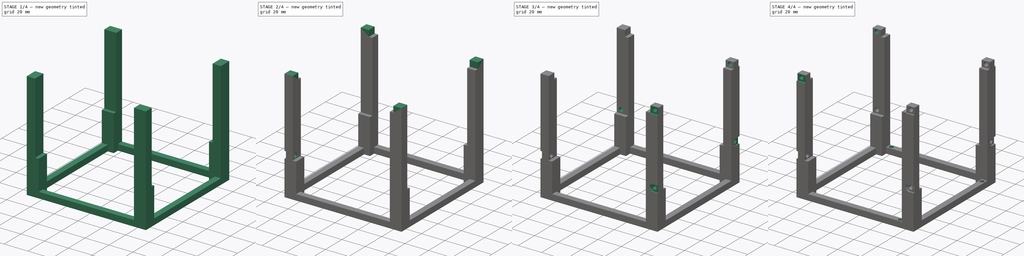
[diagram: build sequence overview — one tinted view per stage of 4, left to right]
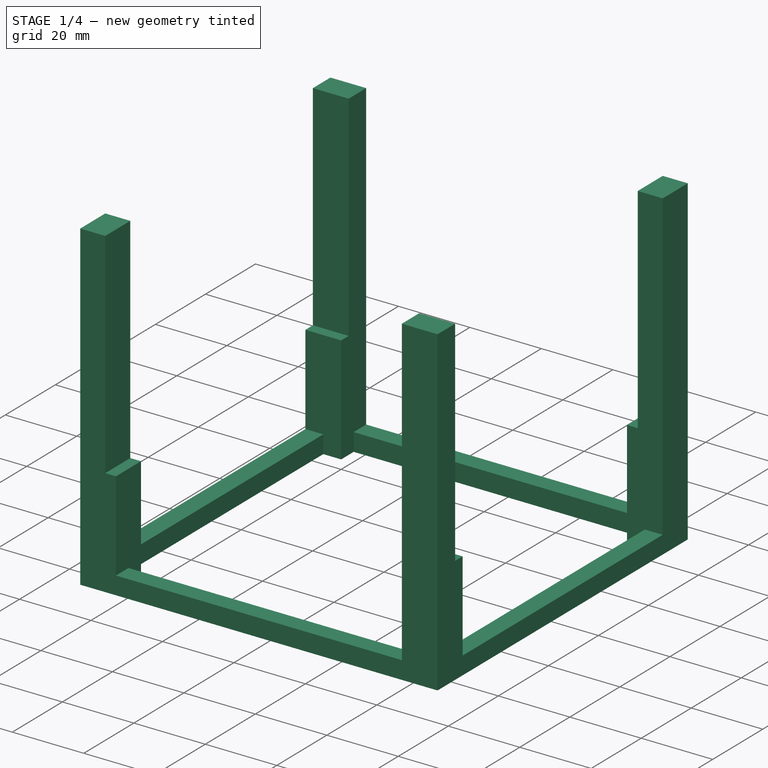
[diagram: stage 1 of 4 — iso view after this stage's code; geometry added in this stage tinted green]
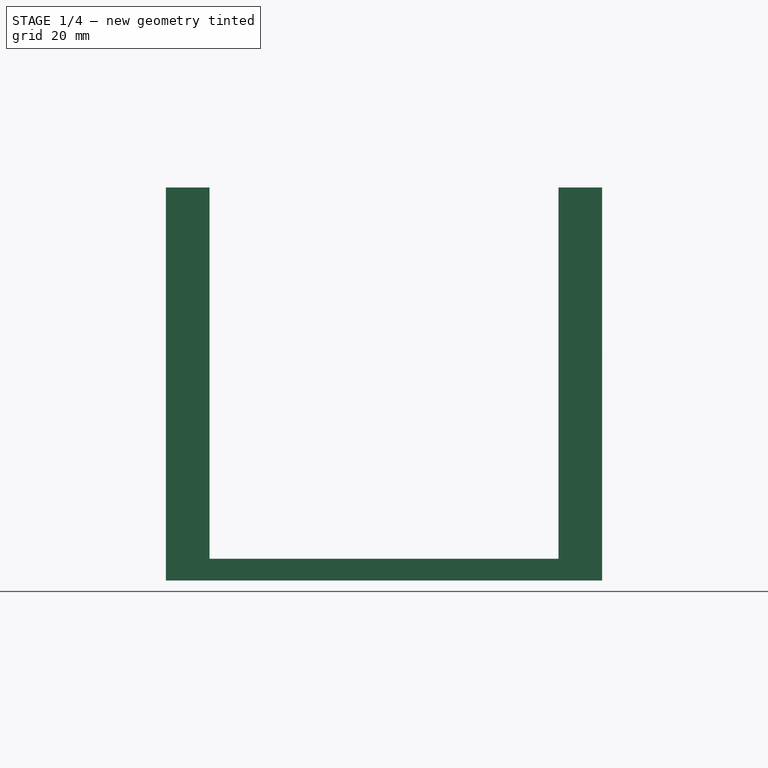
[diagram: stage 1 of 4 — front view after this stage's code; geometry added in this stage tinted green]
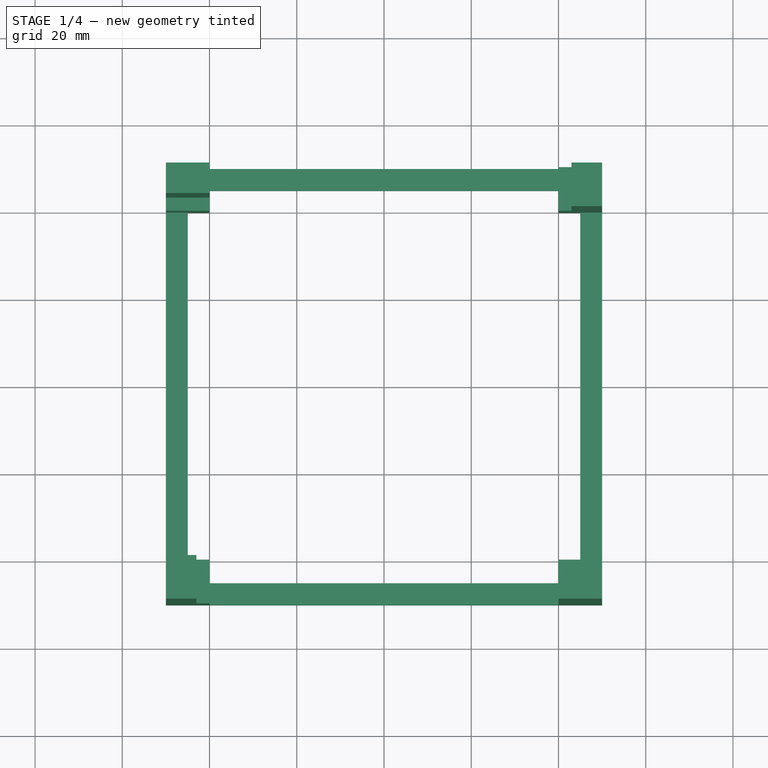
[diagram: stage 1 of 4 — top view after this stage's code; geometry added in this stage tinted green]
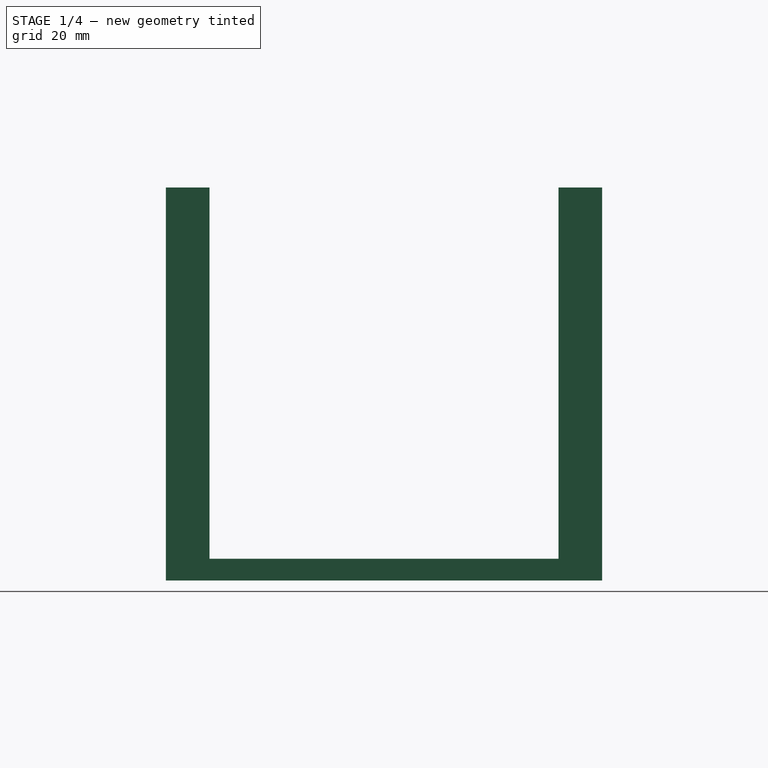
[diagram: stage 1 of 4 — right view after this stage's code; geometry added in this stage tinted green]
FCSTD DOCUMENT  (FreeCAD 0.21R33771 (Git))
Label: cubesat
License: All rights reserved
LicenseURL: https://en.wikipedia.org/wiki/All_rights_reserved
objects: Sketcher::SketchObject×10, PartDesign::Pocket×6, Part::Feature×5, PartDesign::Pad×4, PartDesign::PolarPattern×3, App::Part×1, PartDesign::Body×1
note: 39 computed .brp shape members not serialized (recipe doc carries the construction recipe); baked Part::Feature solids carry a one-line shape summary decoded from their .brp

FEATURE [Sketcher::SketchObject] Sketch
  FullyConstrained = true
  MapMode = 5
  Support = -> [XY_Plane]
  sketch-geometry (16):
    g0: LineSegment StartX=-50 StartY=50 StartZ=0 EndX=-50 EndY=-50 EndZ=0
    g1: LineSegment StartX=-40 StartY=40 StartZ=0 EndX=-45 EndY=40 EndZ=0
    g2: LineSegment StartX=-45 StartY=40 StartZ=0 EndX=-45 EndY=-40 EndZ=0
    g3: LineSegment StartX=-40 StartY=-40 StartZ=0 EndX=-45 EndY=-40 EndZ=0
    g4: LineSegment StartX=-50 StartY=-50 StartZ=0 EndX=50 EndY=-50 EndZ=0
    g5: LineSegment StartX=40 StartY=-40 StartZ=0 EndX=40 EndY=-45 EndZ=0
    g6: LineSegment StartX=-40 StartY=-40 StartZ=0 EndX=-40 EndY=-45 EndZ=0
    g7: LineSegment StartX=-40 StartY=-45 StartZ=0 EndX=40 EndY=-45 EndZ=0
    g8: LineSegment StartX=50 StartY=50 StartZ=0 EndX=50 EndY=-50 EndZ=0
    g9: LineSegment StartX=40 StartY=-40 StartZ=0 EndX=45 EndY=-40 EndZ=0
    g10: LineSegment StartX=40 StartY=40 StartZ=0 EndX=45 EndY=40 EndZ=0
    g11: LineSegment StartX=45 StartY=40 StartZ=0 EndX=45 EndY=-40 EndZ=0
    g12: LineSegment StartX=-50 StartY=50 StartZ=0 EndX=50 EndY=50 EndZ=0
    g13: LineSegment StartX=-40 StartY=40 StartZ=0 EndX=-40 EndY=45 EndZ=0
    g14: LineSegment StartX=-40 StartY=45 StartZ=0 EndX=40 EndY=45 EndZ=0
    g15: LineSegment StartX=40 StartY=45 StartZ=0 EndX=40 EndY=40 EndZ=0
  constraints (45):
    c: Horizontal(g1)
    c: Coincident(g2,g1)
    c: Vertical(g2)
    c: Coincident(g3,g2)
    c: Coincident(g4,g0)
    c: Vertical(g5)
    c: Coincident(g6,g3)
    c: Vertical(g6)
    c: Coincident(g7,g6)
    c: Coincident(g7,g5)
    c: Coincident(g8,g4)
    c: Coincident(g9,g5)
    c: Horizontal(g9)
    c: Horizontal(g10)
    c: Coincident(g11,g10)
    c: Coincident(g11,g9)
    c: Coincident(g12,g0)
    c: Coincident(g12,g8)
    c: Horizontal(g12)
    c: Coincident(g13,g1)
    c: Vertical(g13)
    c: Coincident(g14,g13)
    c: Horizontal(g14)
    c: Coincident(g15,g14)
    c: Coincident(g15,g10)
    c: Vertical(g15)
    c: Horizontal(g7)
    c: Horizontal(g4)
    c: Horizontal(g3)
    c: Vertical(g0)
    c: Vertical(g11)
    c: Vertical(g8)
    c: DistanceX(g0,g1) = 5
    c: DistanceX(g1,g1) = 5
    c: DistanceY(g13,g13) = 5
    c: DistanceY(g13,g0) = 5
    c: Symmetric(g10,g1,g-2)
    c: Symmetric(g10,g5,g-1)
    c: Symmetric(g3,g5,g-2)
    c: DistanceX(g4,g4) = 100
    c: DistanceY(g8,g8) = 100
    c: DistanceY(g2,g2) = 80
    c: DistanceX(g7,g7) = 80
    c: DistanceX(g10,g10) = 5
    c: DistanceY(g6,g6) = 5
FEATURE [PartDesign::Pad] Pad  label="base_support"
  Direction = (0,0,1)
  Length = 5
  Length2 = 10
  Profile = -> Sketch
  ReferenceAxis = -> Sketch [N_Axis]
  Refine = true
  Type = 0
FEATURE [Sketcher::SketchObject] Sketch001
  FullyConstrained = true
  MapMode = 5
  Placement = pos=(0,0,5) rot=(0,0,1;0rad)
  Support = -> [Pad]
  sketch-geometry (16):
    g0: LineSegment StartX=-50 StartY=50 StartZ=0 EndX=-40 EndY=50 EndZ=0
    g1: LineSegment StartX=-40 StartY=50 StartZ=0 EndX=-40 EndY=40 EndZ=0
    g2: LineSegment StartX=-40 StartY=40 StartZ=0 EndX=-50 EndY=40 EndZ=0
    g3: LineSegment StartX=-50 StartY=40 StartZ=0 EndX=-50 EndY=50 EndZ=0
    g4: LineSegment StartX=40 StartY=50 StartZ=0 EndX=50 EndY=50 EndZ=0
    g5: LineSegment StartX=50 StartY=50 StartZ=0 EndX=50 EndY=40 EndZ=0
    g6: LineSegment StartX=50 StartY=40 StartZ=0 EndX=40 EndY=40 EndZ=0
    g7: LineSegment StartX=40 StartY=40 StartZ=0 EndX=40 EndY=50 EndZ=0
    g8: LineSegment StartX=-50 StartY=-40 StartZ=0 EndX=-40 EndY=-40 EndZ=0
    g9: LineSegment StartX=-40 StartY=-40 StartZ=0 EndX=-40 EndY=-50 EndZ=0
    g10: LineSegment StartX=-40 StartY=-50 StartZ=0 EndX=-50 EndY=-50 EndZ=0
    g11: LineSegment StartX=-50 StartY=-50 StartZ=0 EndX=-50 EndY=-40 EndZ=0
    g12: LineSegment StartX=40 StartY=-40 StartZ=0 EndX=50 EndY=-40 EndZ=0
    g13: LineSegment StartX=50 StartY=-40 StartZ=0 EndX=50 EndY=-50 EndZ=0
    g14: LineSegment StartX=50 StartY=-50 StartZ=0 EndX=40 EndY=-50 EndZ=0
    g15: LineSegment StartX=40 StartY=-50 StartZ=0 EndX=40 EndY=-40 EndZ=0
  constraints (45):
    c: Coincident(g0,g1)
    c: Coincident(g1,g2)
    c: Coincident(g2,g3)
    c: Coincident(g3,g0)
    c: Horizontal(g0)
    c: Horizontal(g2)
    c: Vertical(g1)
    c: Vertical(g3)
    c: Coincident(g4,g5)
    c: Coincident(g5,g6)
    c: Coincident(g6,g7)
    c: Coincident(g7,g4)
    c: Horizontal(g4)
    c: Horizontal(g6)
    c: Vertical(g5)
    c: Vertical(g7)
    c: Coincident(g8,g9)
    c: Coincident(g9,g10)
    c: Coincident(g10,g11)
    c: Coincident(g11,g8)
    c: Horizontal(g8)
    c: Horizontal(g10)
    c: Vertical(g9)
    c: Vertical(g11)
    c: Coincident(g12,g13)
    c: Coincident(g13,g14)
    c: Coincident(g14,g15)
    c: Coincident(g15,g12)
    c: Horizontal(g12)
    c: Horizontal(g14)
    c: Vertical(g13)
    c: Vertical(g15)
    c: DistanceX(g0,g0) = 10
    c: DistanceY(g3,g3) = 10
    c: Equal(g0,g4)
    c: Equal(g4,g12)
    c: Equal(g12,g8)
    c: Equal(g3,g7)
    c: Equal(g7,g15)
    c: Equal(g15,g11)
    c: Symmetric(g0,g4,g-2)
    c: Symmetric(g10,g13,g-2)
    c: Symmetric(g4,g13,g-1)
    c: DistanceX(g-1,g4) = 50
    c: DistanceY(g-1,g4) = 50
FEATURE [PartDesign::Pad] Pad001  label="wheel_support"
  BaseFeature = -> Pad
  Direction = (0,0,1)
  Length = 25.1
  Length2 = 10
  Profile = -> Sketch001
  ReferenceAxis = -> Sketch001 [N_Axis]
  Refine = true
  Type = 0
FEATURE [Sketcher::SketchObject] Sketch002
  FullyConstrained = true
  MapMode = 5
  Placement = pos=(0,0,30.1) rot=(0,0,1;0rad)
  Support = -> [Pad001]
  sketch-geometry (16):
    g0: LineSegment StartX=-50 StartY=50 StartZ=0 EndX=-40 EndY=50 EndZ=0
    g1: LineSegment StartX=-40 StartY=50 StartZ=0 EndX=-40 EndY=43 EndZ=0
    g2: LineSegment StartX=-40 StartY=43 StartZ=0 EndX=-50 EndY=43 EndZ=0
    g3: LineSegment StartX=-50 StartY=43 StartZ=0 EndX=-50 EndY=50 EndZ=0
    g4: LineSegment StartX=-50 StartY=-40 StartZ=0 EndX=-43 EndY=-40 EndZ=0
    g5: LineSegment StartX=-43 StartY=-40 StartZ=0 EndX=-43 EndY=-50 EndZ=0
    g6: LineSegment StartX=-43 StartY=-50 StartZ=0 EndX=-50 EndY=-50 EndZ=0
    g7: LineSegment StartX=-50 StartY=-50 StartZ=0 EndX=-50 EndY=-40 EndZ=0
    g8: LineSegment StartX=40 StartY=-43 StartZ=0 EndX=50 EndY=-43 EndZ=0
    g9: LineSegment StartX=50 StartY=-43 StartZ=0 EndX=50 EndY=-50 EndZ=0
    g10: LineSegment StartX=50 StartY=-50 StartZ=0 EndX=40 EndY=-50 EndZ=0
    g11: LineSegment StartX=40 StartY=-50 StartZ=0 EndX=40 EndY=-43 EndZ=0
    g12: LineSegment StartX=43 StartY=50 StartZ=0 EndX=50 EndY=50 EndZ=0
    g13: LineSegment StartX=50 StartY=50 StartZ=0 EndX=50 EndY=40 EndZ=0
    g14: LineSegment StartX=50 StartY=40 StartZ=0 EndX=43 EndY=40 EndZ=0
    g15: LineSegment StartX=43 StartY=40 StartZ=0 EndX=43 EndY=50 EndZ=0
  constraints (45):
    c: Coincident(g0,g1)
    c: Coincident(g1,g2)
    c: Coincident(g2,g3)
    c: Coincident(g3,g0)
    c: Horizontal(g0)
    c: Horizontal(g2)
    c: Vertical(g1)
    c: Vertical(g3)
    c: Coincident(g4,g5)
    c: Coincident(g5,g6)
    c: Coincident(g6,g7)
    c: Coincident(g7,g4)
    c: Horizontal(g4)
    c: Horizontal(g6)
    c: Vertical(g5)
    c: Vertical(g7)
    c: Coincident(g8,g9)
    c: Coincident(g9,g10)
    c: Coincident(g10,g11)
    c: Coincident(g11,g8)
    c: Horizontal(g8)
    c: Horizontal(g10)
    c: Vertical(g9)
    c: Vertical(g11)
    c: Coincident(g12,g13)
    c: Coincident(g13,g14)
    c: Coincident(g14,g15)
    c: Coincident(g15,g12)
    c: Horizontal(g12)
    c: Horizontal(g14)
    c: Vertical(g13)
    c: Vertical(g15)
    c: DistanceX(g0,g0) = 10
    c: DistanceX(g4,g4) = 7
    c: DistanceY(g3,g3) = 7
    c: DistanceY(g7,g7) = 10
    c: Equal(g0,g8)
    c: Equal(g3,g11)
    c: Equal(g4,g12)
    c: Equal(g7,g15)
    c: Symmetric(g12,g0,g-2)
    c: Symmetric(g6,g9,g-2)
    c: Symmetric(g9,g12,g-1)
    c: DistanceX(g-1,g12) = 50
    c: DistanceY(g-1,g12) = 50
FEATURE [PartDesign::Pad] Pad002  label="columns"
  BaseFeature = -> Pad001
  Direction = (0,0,1)
  Length = 60
  Length2 = 10
  Profile = -> Sketch002
  ReferenceAxis = -> Sketch002 [N_Axis]
  Refine = true
  Type = 0
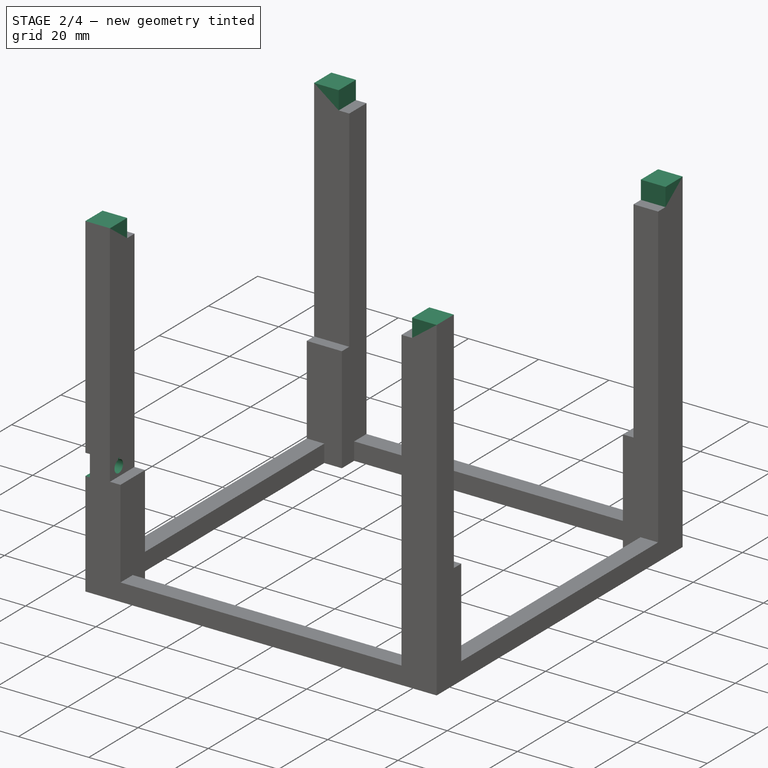
[diagram: stage 2 of 4 — iso view after this stage's code; geometry added in this stage tinted green]
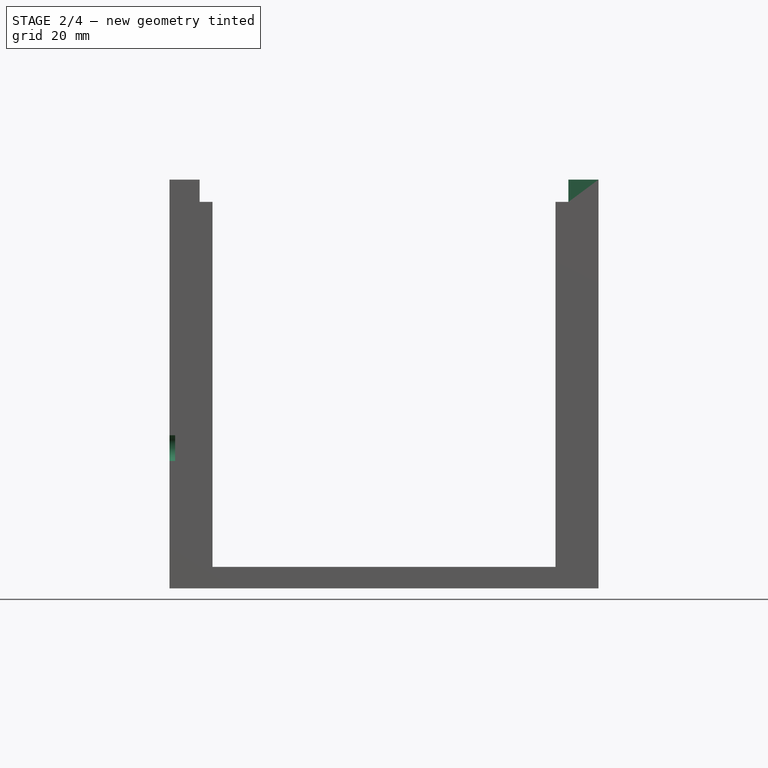
[diagram: stage 2 of 4 — front view after this stage's code; geometry added in this stage tinted green]
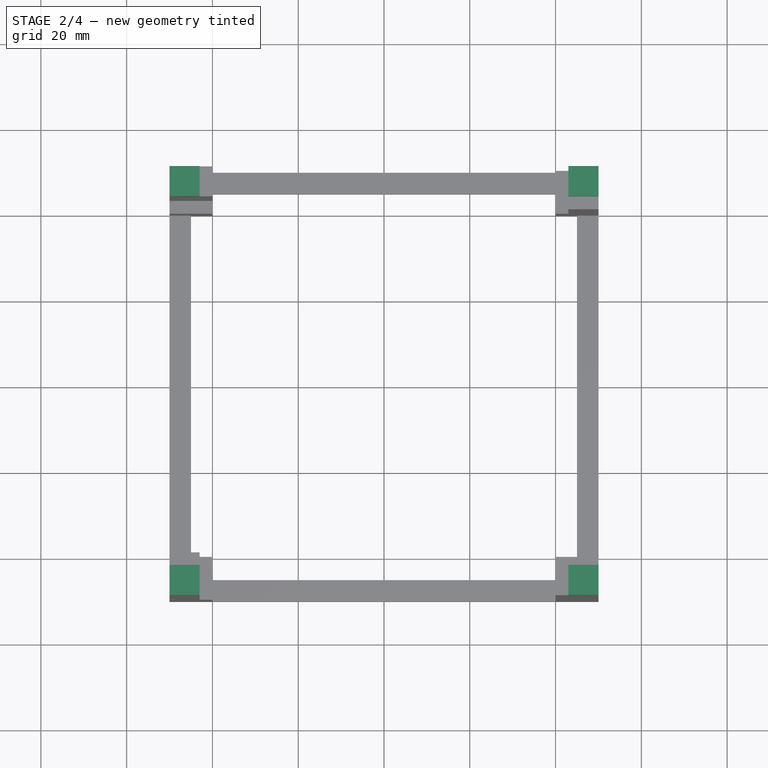
[diagram: stage 2 of 4 — top view after this stage's code; geometry added in this stage tinted green]
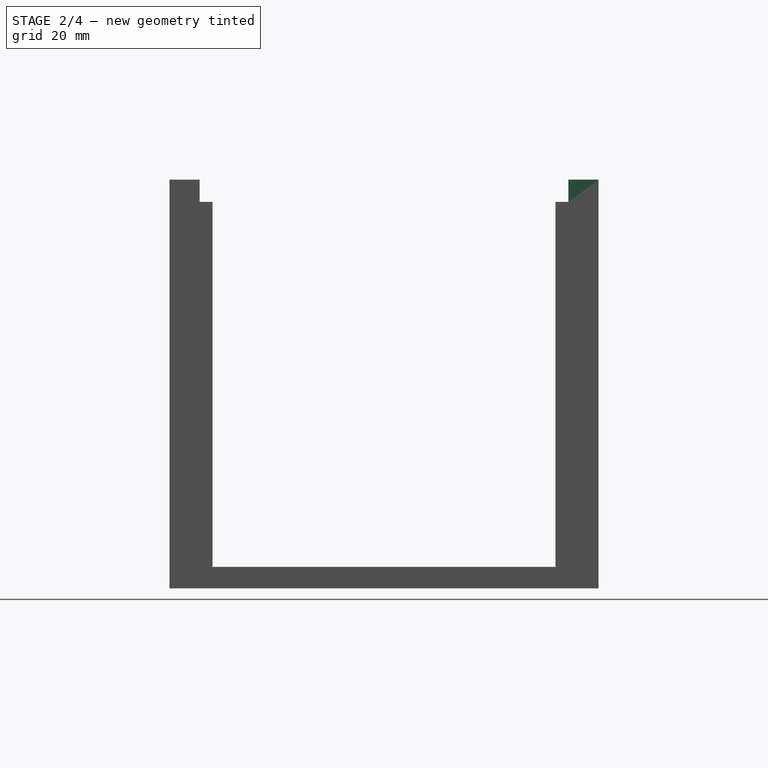
[diagram: stage 2 of 4 — right view after this stage's code; geometry added in this stage tinted green]
FEATURE [Sketcher::SketchObject] Sketch003
  FullyConstrained = true
  MapMode = 5
  Placement = pos=(0,0,90.1) rot=(0,0,1;0rad)
  Support = -> [Pad002]
  sketch-geometry (16):
    g0: LineSegment StartX=-50 StartY=50 StartZ=0 EndX=-43 EndY=50 EndZ=0
    g1: LineSegment StartX=-43 StartY=50 StartZ=0 EndX=-43 EndY=43 EndZ=0
    g2: LineSegment StartX=-43 StartY=43 StartZ=0 EndX=-50 EndY=43 EndZ=0
    g3: LineSegment StartX=-50 StartY=43 StartZ=0 EndX=-50 EndY=50 EndZ=0
    g4: LineSegment StartX=50 StartY=50 StartZ=0 EndX=43 EndY=50 EndZ=0
    g5: LineSegment StartX=43 StartY=50 StartZ=0 EndX=43 EndY=43 EndZ=0
    g6: LineSegment StartX=43 StartY=43 StartZ=0 EndX=50 EndY=43 EndZ=0
    g7: LineSegment StartX=50 StartY=43 StartZ=0 EndX=50 EndY=50 EndZ=0
    g8: LineSegment StartX=-50 StartY=-43 StartZ=0 EndX=-43 EndY=-43 EndZ=0
    g9: LineSegment StartX=-43 StartY=-43 StartZ=0 EndX=-43 EndY=-50 EndZ=0
    g10: LineSegment StartX=-43 StartY=-50 StartZ=0 EndX=-50 EndY=-50 EndZ=0
    g11: LineSegment StartX=-50 StartY=-50 StartZ=0 EndX=-50 EndY=-43 EndZ=0
    g12: LineSegment StartX=43 StartY=-43 StartZ=0 EndX=50 EndY=-43 EndZ=0
    g13: LineSegment StartX=50 StartY=-43 StartZ=0 EndX=50 EndY=-50 EndZ=0
    g14: LineSegment StartX=50 StartY=-50 StartZ=0 EndX=43 EndY=-50 EndZ=0
    g15: LineSegment StartX=43 StartY=-50 StartZ=0 EndX=43 EndY=-43 EndZ=0
  constraints (45):
    c: Coincident(g0,g1)
    c: Coincident(g1,g2)
    c: Coincident(g2,g3)
    c: Coincident(g3,g0)
    c: Horizontal(g0)
    c: Horizontal(g2)
    c: Vertical(g1)
    c: Vertical(g3)
    c: Coincident(g4,g5)
    c: Coincident(g5,g6)
    c: Coincident(g6,g7)
    c: Coincident(g7,g4)
    c: Horizontal(g4)
    c: Horizontal(g6)
    c: Vertical(g5)
    c: Vertical(g7)
    c: Coincident(g8,g9)
    c: Coincident(g9,g10)
    c: Coincident(g10,g11)
    c: Coincident(g11,g8)
    c: Horizontal(g8)
    c: Horizontal(g10)
    c: Vertical(g9)
    c: Vertical(g11)
    c: Coincident(g12,g13)
    c: Coincident(g13,g14)
    c: Coincident(g14,g15)
    c: Coincident(g15,g12)
    c: Horizontal(g12)
    c: Horizontal(g14)
    c: Vertical(g13)
    c: Vertical(g15)
    c: DistanceX(g0,g0) = 7
    c: DistanceY(g3,g3) = 7
    c: Equal(g0,g4)
    c: Equal(g3,g7)
    c: Equal(g4,g12)
    c: Equal(g7,g15)
    c: Equal(g12,g8)
    c: Equal(g12,g11)
    c: Symmetric(g10,g13,g-2)
    c: DistanceX(g-1,g4) = 50
    c: DistanceY(g-1,g4) = 50
    c: Symmetric(g4,g13,g-1)
    c: Symmetric(g4,g0,g-2)
FEATURE [PartDesign::Pad] Pad003  label="lid_support"
  BaseFeature = -> Pad002
  Direction = (0,0,1)
  Length = 5.2
  Length2 = 10
  Profile = -> Sketch003
  ReferenceAxis = -> Sketch003 [N_Axis]
  Refine = true
  Type = 0
FEATURE [Part::Feature] Part__Feature  label="Body002"
  Placement = pos=(28.7,24.8,26.2) rot=(0.654654,0.654654,0.377964;2.41886rad)
  shape: bbox 37.33 x 38.71 x 44.32 mm, 41 faces (baked)
FEATURE [Part::Feature] Part__Feature006  label="Body003"
  shape: bbox 100 x 100 x 13 mm, 90 faces (baked)
FEATURE [Part::Feature] Part__Feature007  label="Body001"
  Placement = pos=(24.8,-28.8,26.2) rot=(1,0,0;2.0944rad)
  shape: bbox 38.71 x 37.33 x 44.32 mm, 41 faces (baked)
FEATURE [App::Part] __wheel_support
  Group = -> [Part__Feature,Part__Feature006,Part__Feature007]
  Origin = -> Origin001
  Placement = pos=(0,0,35) rot=(0,0,1;0rad)
FEATURE [Sketcher::SketchObject] Sketch004
  FullyConstrained = true
  MapMode = 5
  Placement = pos=(-50,0,0) rot=(0.57735,-0.57735,-0.57735;2.0944rad)
  Support = -> [Pad003]
  sketch-geometry (4):
    g0: ArcOfCircle CenterX=46.4 CenterY=32.7 CenterZ=0 NormalX=0 NormalY=0 NormalZ=1 AngleXU=0 Radius=3 StartAngle=1.5708 EndAngle=4.71239
    g1: LineSegment StartX=46.4 StartY=35.7 StartZ=0 EndX=50 EndY=35.7 EndZ=0
    g2: LineSegment StartX=50 StartY=35.7 StartZ=0 EndX=50 EndY=29.7 EndZ=0
    g3: LineSegment StartX=50 StartY=29.7 StartZ=0 EndX=46.4 EndY=29.7 EndZ=0
  constraints (12):
    c: Vertical(g0,g0)
    c: Diameter(g0) = 6
    c: DistanceX(g-1,g0) = 46.4
    c: DistanceY(g-1,g0) = 32.7
    c: Tangent(g0,g1) = 1.5708
    c: Coincident(g1,g2)
    c: Vertical(g2)
    c: Coincident(g2,g3)
    c: Coincident(g3,g0)
    c: Horizontal(g1)
    c: Horizontal(g3)
    c: DistanceX(g-1,g1) = 50
FEATURE [PartDesign::Pocket] Pocket
  BaseFeature = -> Pad003
  Direction = (1,0,0)
  Length = 1.3
  Length2 = 5
  Profile = -> Sketch004
  ReferenceAxis = -> Sketch004 [N_Axis]
  Type = 0
FEATURE [Sketcher::SketchObject] Sketch005
  FullyConstrained = true
  MapMode = 5
  Placement = pos=(-48.7,0,0) rot=(0.57735,-0.57735,-0.57735;2.0944rad)
  Support = -> [Pocket]
  sketch-geometry (4):
    g0: ArcOfCircle CenterX=46.4 CenterY=32.7 CenterZ=0 NormalX=0 NormalY=0 NormalZ=1 AngleXU=0 Radius=1.75 StartAngle=1.71414 EndAngle=7.71063
    g1: LineSegment StartX=46.15 StartY=34.4321 StartZ=0 EndX=46.15 EndY=34.9321 EndZ=0
    g2: LineSegment StartX=46.15 StartY=34.9321 StartZ=0 EndX=46.65 EndY=34.9321 EndZ=0
    g3: LineSegment StartX=46.65 StartY=34.9321 StartZ=0 EndX=46.65 EndY=34.4321 EndZ=0
  constraints (13):
    c: DistanceY(g-1,g0) = 32.7
    c: DistanceX(g-1,g0) = 46.4
    c: Diameter(g0) = 3.5
    c: Horizontal(g0,g0)
    c: Coincident(g1,g0)
    c: Vertical(g1)
    c: Coincident(g2,g1)
    c: Horizontal(g2)
    c: Coincident(g3,g2)
    c: Coincident(g3,g0)
    c: Vertical(g3)
    c: DistanceX(g2,g2) = 0.5
    c: DistanceY(g3,g3) = 0.5
FEATURE [PartDesign::Pocket] Pocket001
  BaseFeature = -> Pocket
  Direction = (1,0,0)
  Length = 5
  Length2 = 5
  Profile = -> Sketch005
  ReferenceAxis = -> Sketch005 [N_Axis]
  Type = 2
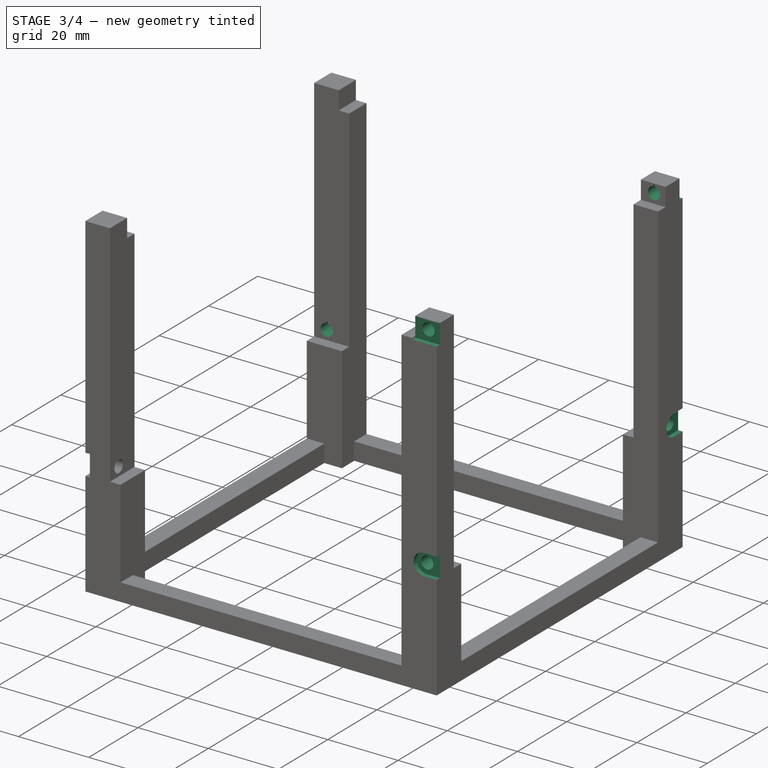
[diagram: stage 3 of 4 — iso view after this stage's code; geometry added in this stage tinted green]
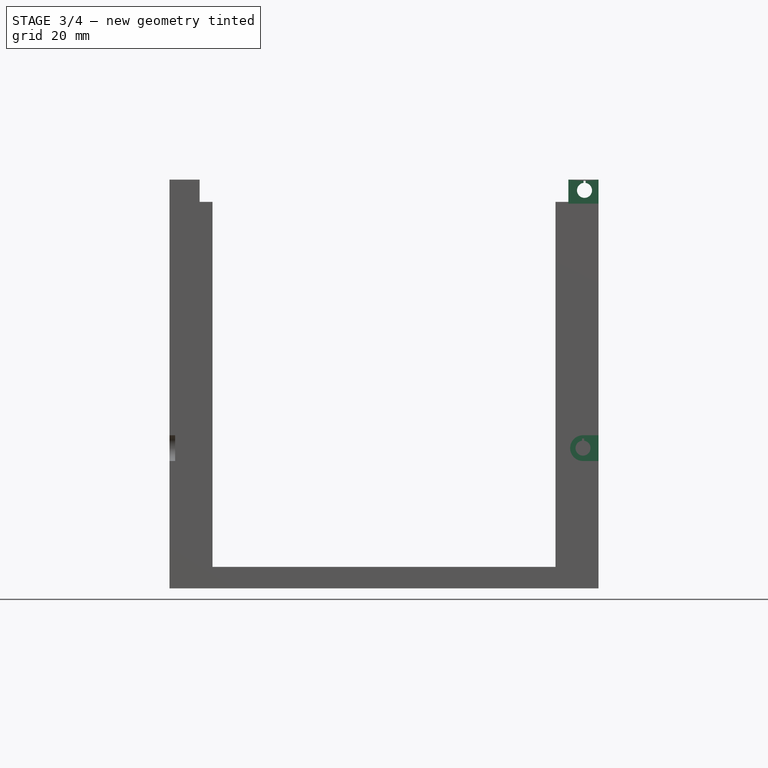
[diagram: stage 3 of 4 — front view after this stage's code; geometry added in this stage tinted green]
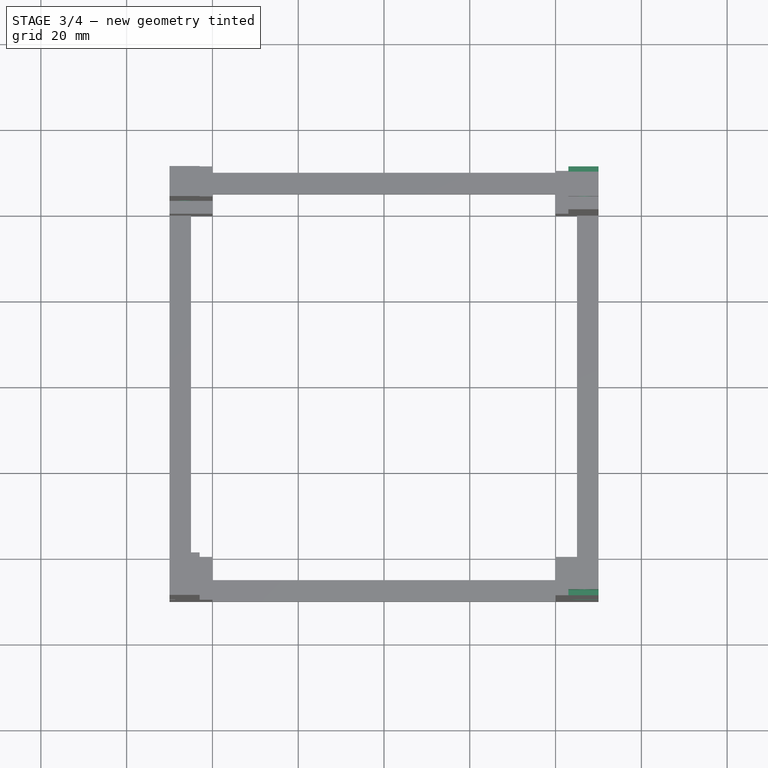
[diagram: stage 3 of 4 — top view after this stage's code; geometry added in this stage tinted green]
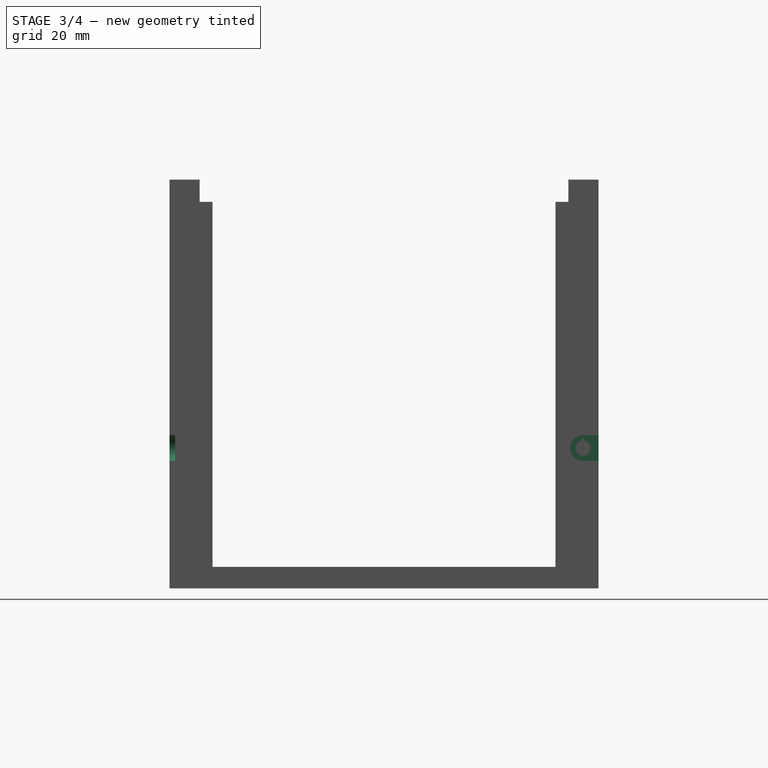
[diagram: stage 3 of 4 — right view after this stage's code; geometry added in this stage tinted green]
FEATURE [PartDesign::PolarPattern] PolarPattern  label="wheel_screws"
  Angle = 360
  Axis = -> Z_Axis
  BaseFeature = -> Pocket001
  Occurrences = 4
  Originals = -> [Pocket001,Pocket]
  Refine = true
FEATURE [Part::Feature] Part__Feature008  label="lid"
  Placement = pos=(0,0,95) rot=(0,0,1;0rad)
  shape: bbox 100 x 100 x 5 mm, 47 faces (baked)
FEATURE [Sketcher::SketchObject] Sketch006
  FullyConstrained = true
  MapMode = 5
  Placement = pos=(0,-50,0) rot=(1,0,0;1.5708rad)
  Support = -> [PolarPattern]
  sketch-geometry (4):
    g0: LineSegment StartX=43 StartY=95.3 StartZ=0 EndX=50 EndY=95.3 EndZ=0
    g1: LineSegment StartX=50 StartY=95.3 StartZ=0 EndX=50 EndY=89.7 EndZ=0
    g2: LineSegment StartX=50 StartY=89.7 StartZ=0 EndX=43 EndY=89.7 EndZ=0
    g3: LineSegment StartX=43 StartY=89.7 StartZ=0 EndX=43 EndY=95.3 EndZ=0
  constraints (12):
    c: Coincident(g0,g1)
    c: Coincident(g1,g2)
    c: Coincident(g2,g3)
    c: Coincident(g3,g0)
    c: Horizontal(g0)
    c: Horizontal(g2)
    c: Vertical(g1)
    c: Vertical(g3)
    c: DistanceX(g0,g0) = 7
    c: DistanceY(g1,g1) = 5.6
    c: DistanceX(g-1,g1) = 50
    c: DistanceY(g-1,g0) = 95.3
FEATURE [PartDesign::Pocket] Pocket002
  BaseFeature = -> PolarPattern
  Direction = (0,1,-2e-16)
  Length = 1.3
  Length2 = 5
  Profile = -> Sketch006
  ReferenceAxis = -> Sketch006 [N_Axis]
  Type = 0
FEATURE [Sketcher::SketchObject] Sketch007
  FullyConstrained = true
  MapMode = 5
  Placement = pos=(0,-48.7,0) rot=(1,0,0;1.5708rad)
  Support = -> [Pocket002]
  sketch-geometry (4):
    g0: ArcOfCircle CenterX=46.75 CenterY=92.8 CenterZ=0 NormalX=0 NormalY=0 NormalZ=1 AngleXU=0 Radius=1.75 StartAngle=1.71414 EndAngle=7.71063
    g1: LineSegment StartX=46.5 StartY=94.5321 StartZ=0 EndX=46.5 EndY=95.0321 EndZ=0
    g2: LineSegment StartX=46.5 StartY=95.0321 StartZ=0 EndX=47 EndY=95.0321 EndZ=0
    g3: LineSegment StartX=47 StartY=95.0321 StartZ=0 EndX=47 EndY=94.5321 EndZ=0
  constraints (13):
    c: DistanceY(g-1,g0) = 92.8
    c: DistanceX(g-1,g0) = 46.75
    c: Diameter(g0) = 3.5
    c: Horizontal(g0,g0)
    c: Coincident(g1,g0)
    c: Vertical(g1)
    c: Coincident(g2,g1)
    c: Horizontal(g2)
    c: Coincident(g3,g2)
    c: Coincident(g3,g0)
    c: Vertical(g3)
    c: DistanceX(g2,g2) = 0.5
    c: DistanceY(g3,g3) = 0.5
FEATURE [PartDesign::Pocket] Pocket003
  BaseFeature = -> Pocket002
  Direction = (1e-16,1,-2e-16)
  Length = 5
  Length2 = 5
  Profile = -> Sketch007
  ReferenceAxis = -> Sketch007 [N_Axis]
  Type = 1
FEATURE [Sketcher::SketchObject] Sketch008
  FullyConstrained = true
  MapMode = 5
  Placement = pos=(0,50,0) rot=(0,0.707107,0.707107;3.14159rad)
  Support = -> [Pocket003]
  sketch-geometry (4):
    g0: LineSegment StartX=-50 StartY=95.3 StartZ=0 EndX=-43 EndY=95.3 EndZ=0
    g1: LineSegment StartX=-43 StartY=95.3 StartZ=0 EndX=-43 EndY=89.7 EndZ=0
    g2: LineSegment StartX=-43 StartY=89.7 StartZ=0 EndX=-50 EndY=89.7 EndZ=0
    g3: LineSegment StartX=-50 StartY=89.7 StartZ=0 EndX=-50 EndY=95.3 EndZ=0
  constraints (12):
    c: Coincident(g0,g1)
    c: Coincident(g1,g2)
    c: Coincident(g2,g3)
    c: Coincident(g3,g0)
    c: Horizontal(g0)
    c: Horizontal(g2)
    c: Vertical(g1)
    c: Vertical(g3)
    c: DistanceX(g0,g0) = 7
    c: DistanceY(g3,g3) = 5.6
    c: DistanceY(g-1,g0) = 95.3
    c: DistanceX(g0,g-1) = 50
FEATURE [PartDesign::Pocket] Pocket004
  BaseFeature = -> Pocket003
  Direction = (0,-1,2e-16)
  Length = 1.3
  Length2 = 5
  Profile = -> Sketch008
  ReferenceAxis = -> Sketch008 [N_Axis]
  Type = 0
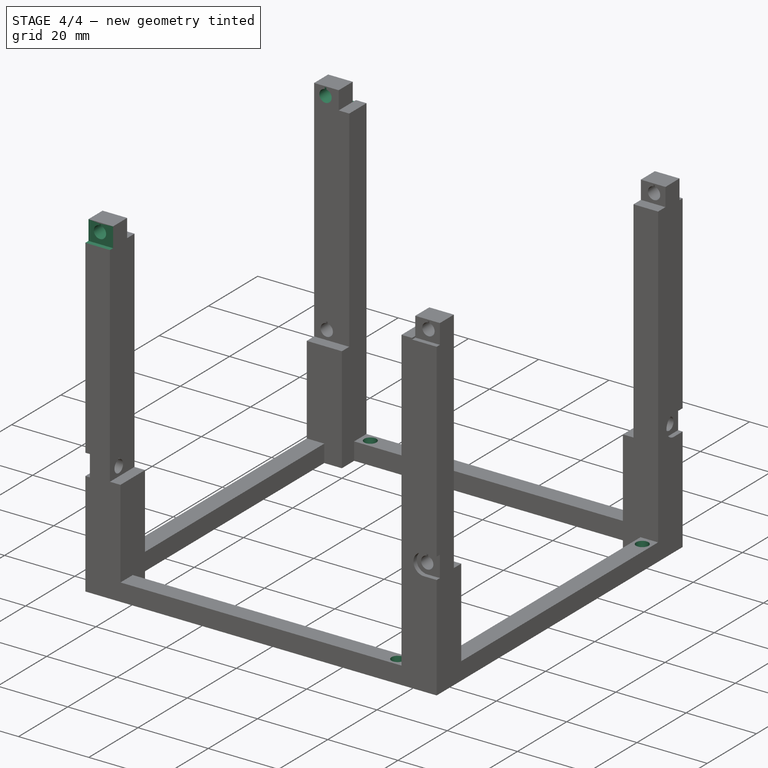
[diagram: stage 4 of 4 — iso view after this stage's code; geometry added in this stage tinted green]
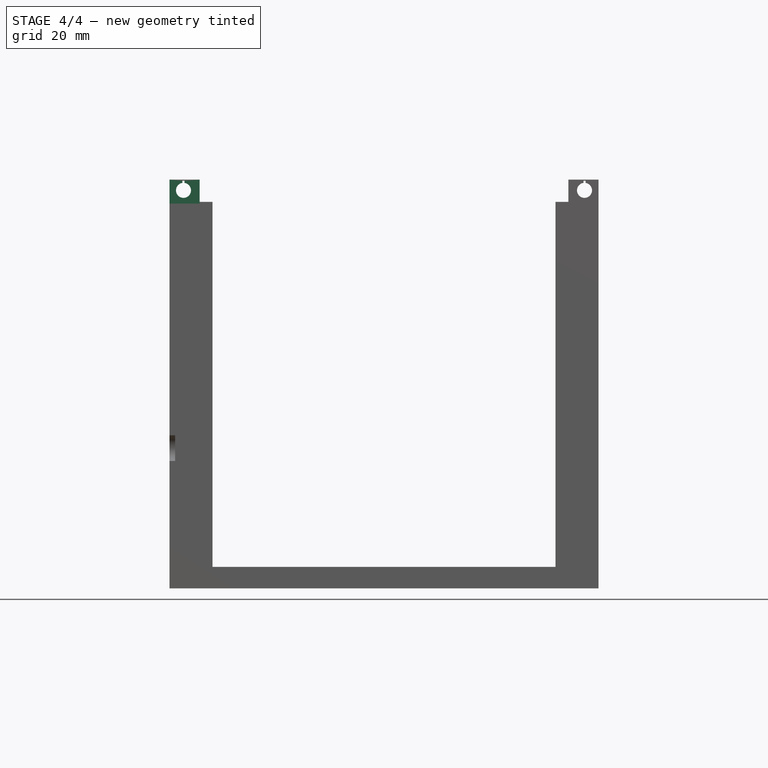
[diagram: stage 4 of 4 — front view after this stage's code; geometry added in this stage tinted green]
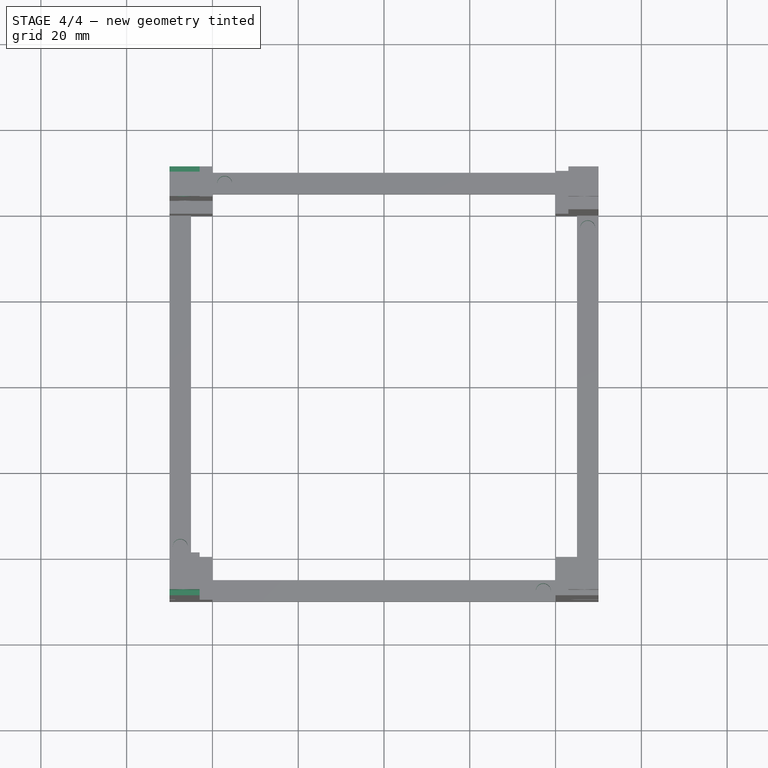
[diagram: stage 4 of 4 — top view after this stage's code; geometry added in this stage tinted green]
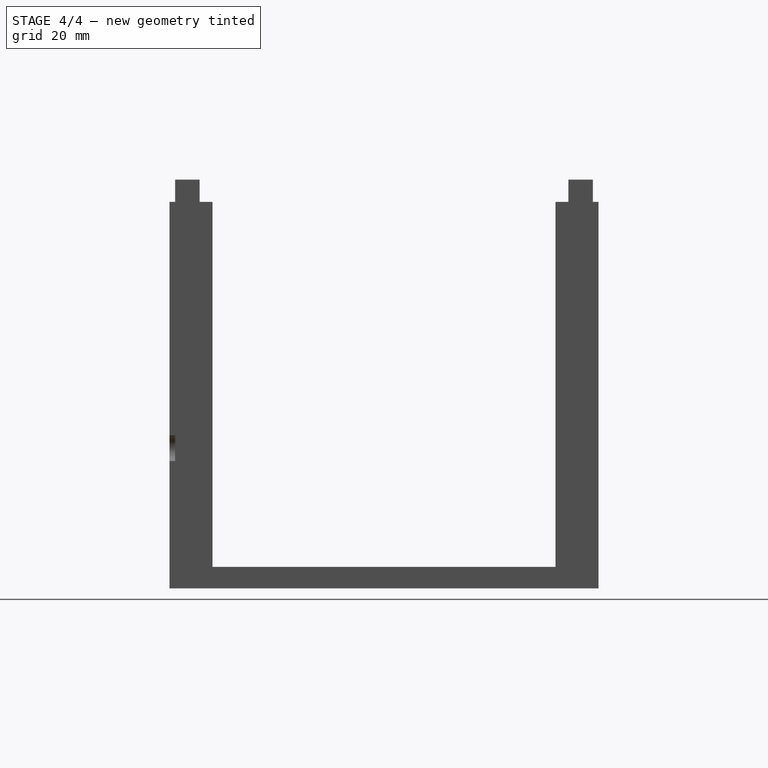
[diagram: stage 4 of 4 — right view after this stage's code; geometry added in this stage tinted green]
FEATURE [PartDesign::PolarPattern] PolarPattern001  label="lid_screws"
  Angle = 360
  Axis = -> Z_Axis
  BaseFeature = -> Pocket004
  Occurrences = 2
  Originals = -> [Pocket002,Pocket003,Pocket004]
  Refine = true
FEATURE [Sketcher::SketchObject] Sketch009
  FullyConstrained = true
  MapMode = 5
  Placement = pos=(0,0,5) rot=(0,0,1;0rad)
  Support = -> [PolarPattern001]
  sketch-geometry (1):
    g0: Circle CenterX=37.15 CenterY=-47.5 CenterZ=0 NormalX=0 NormalY=0 NormalZ=1 AngleXU=0 Radius=1.75
  constraints (3):
    c: Diameter(g0) = 3.5
    c: DistanceX(g-1,g0) = 37.15
    c: DistanceY(g0,g-1) = 47.5
FEATURE [PartDesign::Pocket] Pocket005
  BaseFeature = -> PolarPattern001
  Direction = (0,0,-1)
  Length = 4.99
  Length2 = 5
  Profile = -> Sketch009
  ReferenceAxis = -> Sketch009 [N_Axis]
  Type = 0
FEATURE [PartDesign::PolarPattern] PolarPattern002  label="base_screws"
  Angle = 360
  Axis = -> Sketch009 [N_Axis]
  BaseFeature = -> Pocket005
  Occurrences = 4
  Originals = -> [Pocket005]
  Refine = true
FEATURE [PartDesign::Body] Body
  Group = -> [Sketch,Pad,Sketch001,Pad001,Sketch002,Pad002,Sketch003,Pad003,Sketch004,Pocket,Sketch005,Pocket001,PolarPattern,Sketch006,Pocket002,Sketch007,Pocket003,Sketch008,Pocket004,PolarPattern001,Sketch009,Pocket005,PolarPattern002]
  Origin = -> Origin
  Placement = pos=(0,0,4.9) rot=(0,0,1;0rad)
  Tip = -> PolarPattern002
FEATURE [Part::Feature] Part__Feature009  label="Body004"
  shape: bbox 100 x 100 x 14.8 mm, 77 faces (baked)
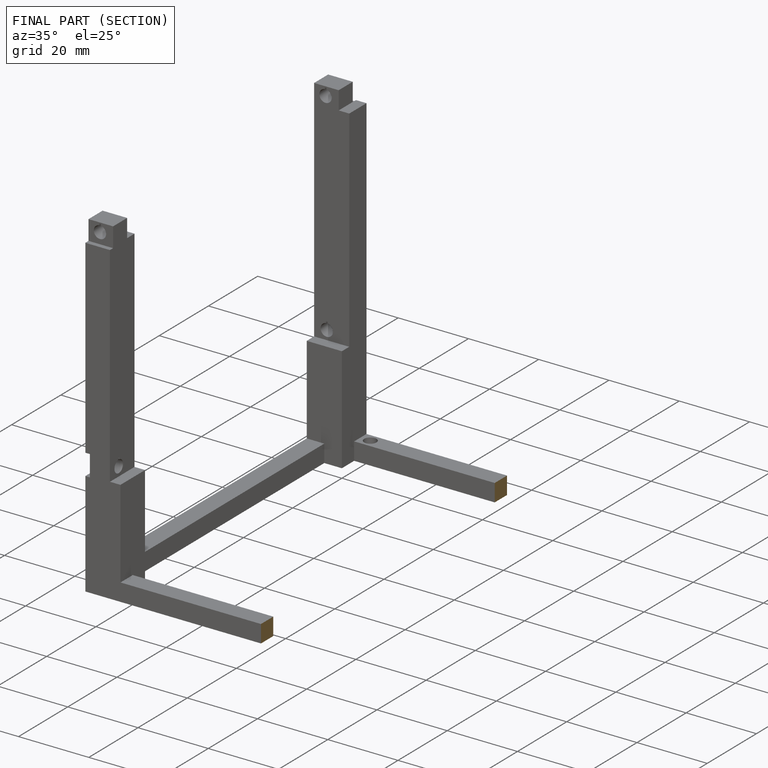
[diagram: finished part — half-section view (interior)]
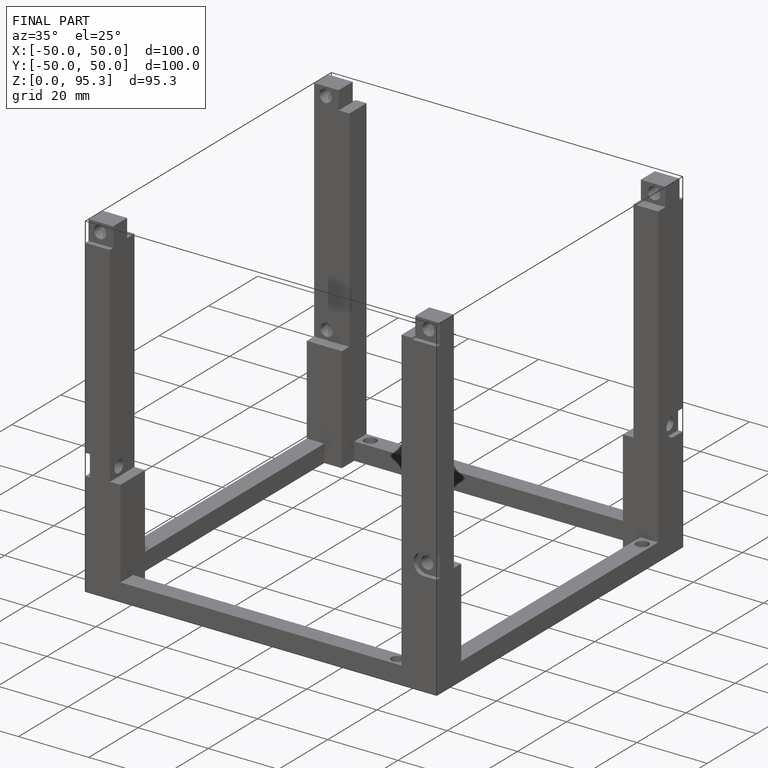
[diagram: finished part — iso view with bounding-box wireframe]
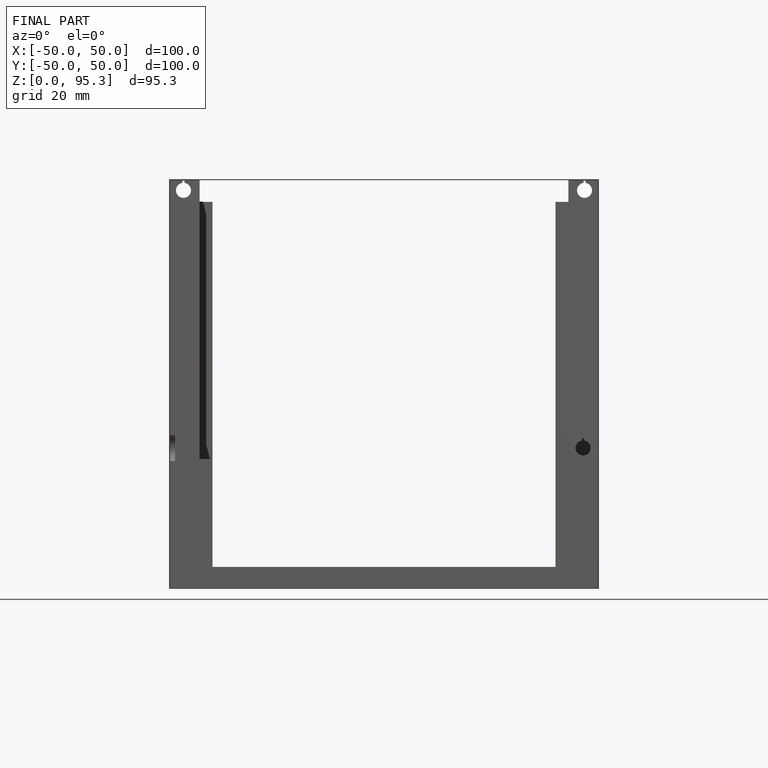
[diagram: finished part — front view with bounding-box wireframe]
